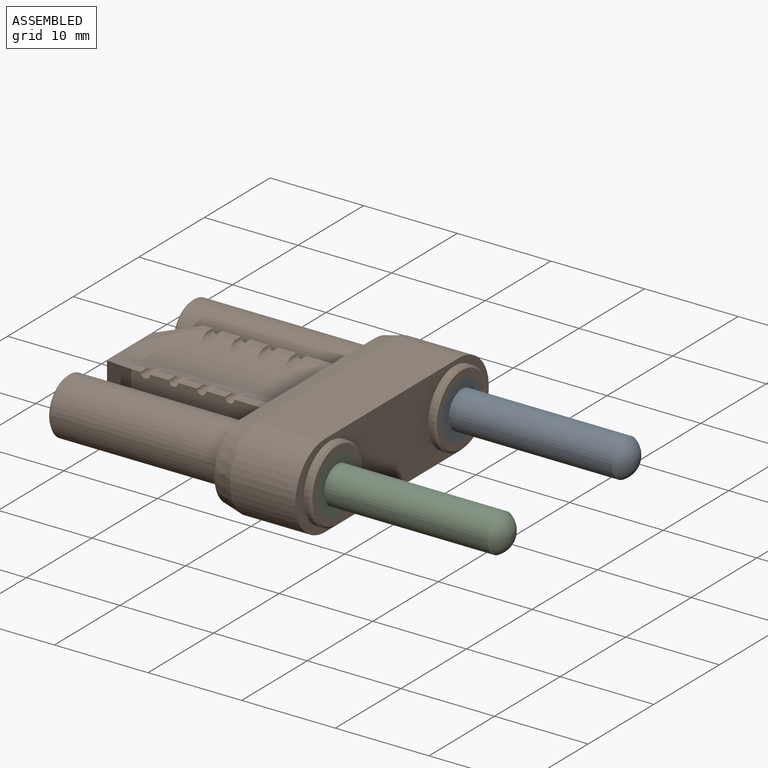
[diagram: assembled view]
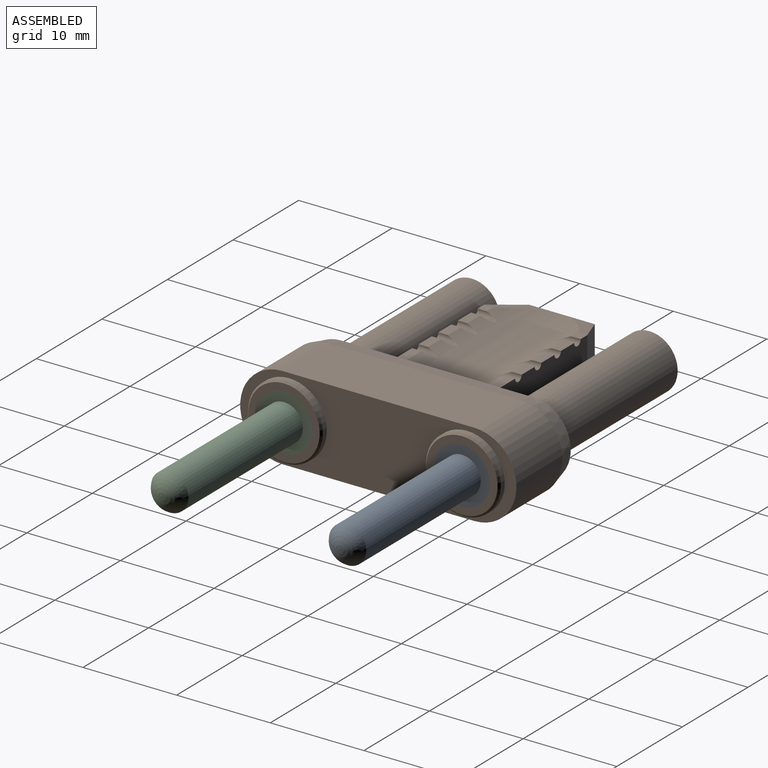
[diagram: assembled view, second angle]
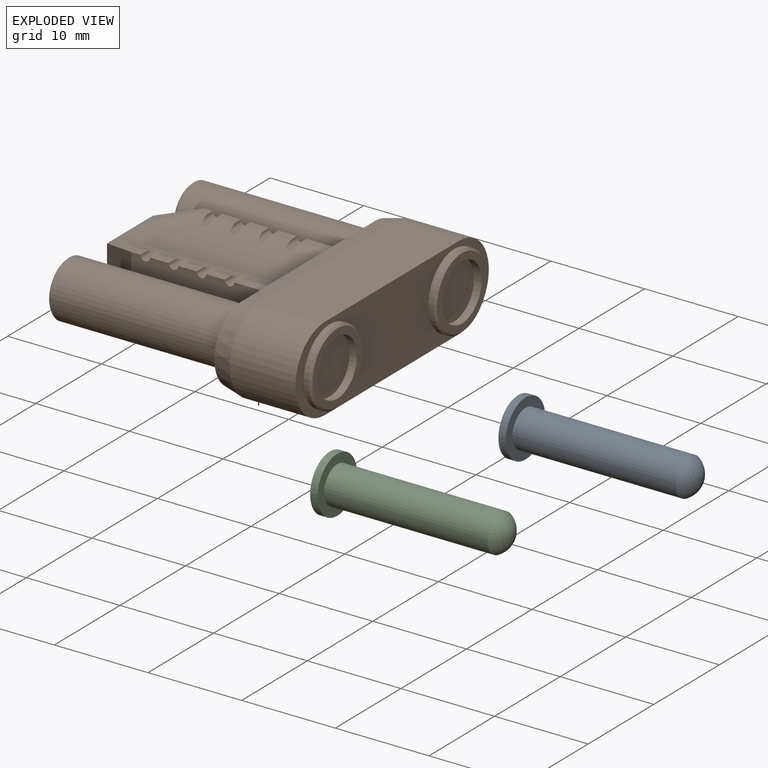
[diagram: exploded view]
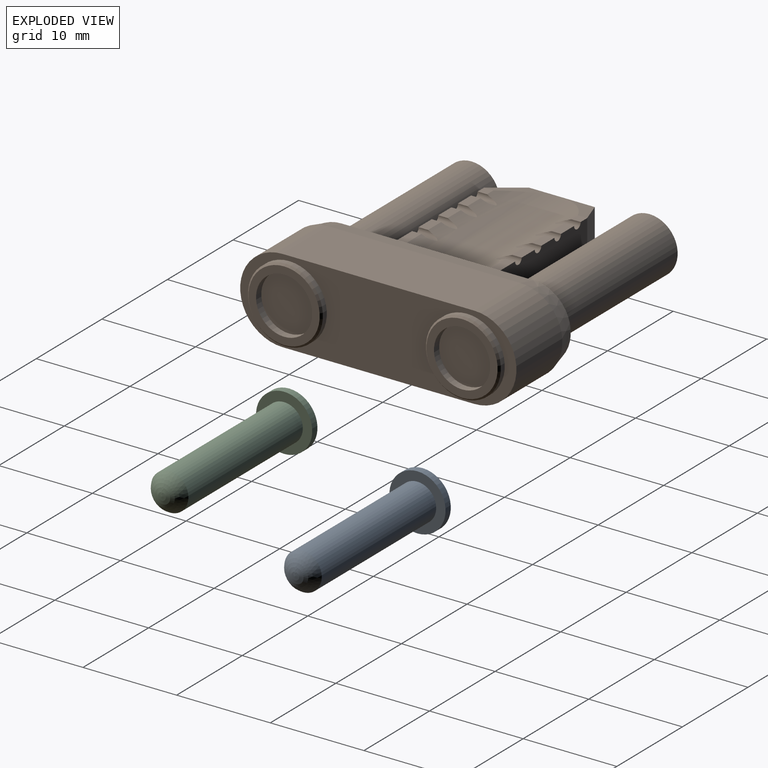
[diagram: exploded view, second angle]
ASSEMBLY  parts=3 mates=2
PART A: 5 faces, bbox 19.5x6x6 mm
  f0: cylinder r=3mm len=6mm, axis (-1,0,0), area 15.1mm2, adj f1,f2
  f1: plane 6x6mm, normal (1,0,0), area 15.7mm2, adj f0,f3
  f2: plane 6x6mm, normal (-1,0,0), area 28.3mm2, adj f0
  f3: cylinder r=2mm len=17.45mm, axis (-1,0,0), area 219.3mm2, adj f1,f4
  f4: sphere r=2.25mm, area 17.2mm2, adj f3
PART B: 77 faces, bbox 28.8x29.5x9 mm
  f0: plane 2x1mm, normal (0,0,-1), area 2mm2, adj f17,f18,f68,f70
  f1: plane 2x1mm, normal (0,0,-1), area 2mm2, adj f17,f18,f66,f68
  f2: plane 2x1mm, normal (0,0,-1), area 2mm2, adj f17,f18,f64,f66
  f3: plane 4x1mm, normal (0,0,-1), area 4mm2, adj f17,f18,f21,f64
  f4: plane 4x1mm, normal (0,0,1), area 4mm2, adj f17,f21,f54,f61
  f5: plane 2x1mm, normal (0,0,1), area 2mm2, adj f17,f54,f59,f61
  f6: plane 2x1mm, normal (0,0,1), area 2mm2, adj f17,f54,f57,f59
  f7: plane 2x1mm, normal (0,0,1), area 2mm2, adj f17,f54,f55,f57
  f8: plane 2x1mm, normal (0,0,-1), area 2mm2, adj f16,f18,f67,f69
  f9: plane 2x1mm, normal (0,0,-1), area 2mm2, adj f16,f18,f65,f67
  f10: plane 2x1mm, normal (0,0,-1), area 2mm2, adj f16,f18,f63,f65
  f11: plane 4x1mm, normal (0,0,-1), area 4mm2, adj f16,f18,f21,f63
  f12: plane 4x1mm, normal (0,0,1), area 4mm2, adj f16,f21,f54,f62
  f13: plane 2x1mm, normal (0,0,1), area 2mm2, adj f16,f54,f60,f62
  f14: plane 2x1mm, normal (0,0,1), area 2mm2, adj f16,f54,f58,f60
  f15: plane 2x1mm, normal (0,0,1), area 2mm2, adj f16,f54,f56,f58
  f16: plane 15x6mm, normal (0,1,0), area 86.9mm2, adj f8,f9,f10,f11,f12,f13,f14,f15
  f17: plane 15x6mm, normal (0,-1,0), area 86.9mm2, adj f0,f1,f2,f3,f4,f5,f6,f7
  f18: cylinder r=11mm len=18.86mm, axis (1,0,0), area 154.1mm2, adj f0,f1,f2,f3,f8,f9,f10,f11
  f19: plane 1x1mm, normal (0,0,-1), area 1mm2, adj f17,f18,f53,f70
  f20: plane 1x1mm, normal (0,0,1), area 1mm2, adj f17,f52,f54,f55
  f21: plane 28.5x8mm, normal (-1,0,0), area 103.4mm2, adj f3,f4,f11,f12,f16,f17,f18,f27
  f22: plane 20.5x7mm, normal (0,0,1), area 143.5mm2, adj f23,f25,f26,f29
  f23: cylinder r=4.5mm len=9mm, axis (-1,0,0), area 99mm2, adj f22,f24,f26,f27
  f24: plane 20.5x7mm, normal (0,0,-1), area 143.5mm2, adj f23,f25,f26,f28
  f25: cylinder r=4.5mm len=9mm, axis (-1,0,0), area 99mm2, adj f22,f24,f26,f30
  f26: plane 29.5x9mm, normal (1,0,0), area 147.6mm2, adj f22,f23,f24,f25,f32,f36
  f27: cone r=4.5mm half-angle=14deg, axis (1,0,0), area 27.5mm2, adj f21,f23,f28,f29
  f28: plane 20.5x2mm, normal (-0.24,0,-0.97), area 42.3mm2, adj f21,f24,f27,f30
  f29: plane 20.5x2mm, normal (-0.24,0,0.97), area 42.3mm2, adj f21,f22,f27,f30
  f30: cone r=4.5mm half-angle=14deg, axis (1,0,0), area 27.5mm2, adj f21,f25,f28,f29
  f31: cylinder r=3mm len=6mm, axis (-1,0,0), area 15.1mm2, adj f33,f34
  f32: cylinder r=4mm len=8mm, axis (-1,0,0), area 15.1mm2, adj f26,f71
  f33: plane 7.6x7.6mm, normal (1,0,0), area 17.1mm2, adj f31,f71
  f34: plane 6x6mm, normal (1,0,0), area 28.3mm2, adj f31
  f35: cylinder r=3mm len=6mm, axis (-1,0,0), area 15.1mm2, adj f37,f38
  f36: cylinder r=4mm len=8mm, axis (-1,0,0), area 15.1mm2, adj f26,f72
  f37: plane 7.6x7.6mm, normal (1,0,0), area 17.1mm2, adj f35,f72
  f38: plane 6x6mm, normal (1,0,0), area 28.3mm2, adj f35
  f39: cylinder r=2mm len=18.8mm, axis (1,0,0), area 236.2mm2, adj f42,f76
  f40: cylinder r=3mm len=18.8mm, axis (1,0,0), area 354.4mm2, adj f21,f75
  f41: plane 5.6x5.6mm, normal (-1,0,0), area 9.4mm2, adj f75,f76
  f42: plane 4x4mm, normal (-1,0,0), area 12.6mm2, adj f39
  f43: cylinder r=2mm len=18.8mm, axis (1,0,0), area 236.2mm2, adj f46,f74
  f44: cylinder r=3mm len=18.8mm, axis (1,0,0), area 354.4mm2, adj f21,f73
  f45: plane 5.6x5.6mm, normal (-1,0,0), area 9.4mm2, adj f73,f74
  f46: plane 4x4mm, normal (-1,0,0), area 12.6mm2, adj f43
  f47: plane 1x1mm, normal (0,0,-1), area 1mm2, adj f16,f18,f53,f69
  f48: plane 1x1mm, normal (0,0,1), area 1mm2, adj f16,f52,f54,f56
  f49: plane 7x4mm, normal (-1,0,0), area 28mm2, adj f50,f51,f52,f53
  f50: plane 6x4mm, normal (-0.45,-0.89,0), area 22.4mm2, adj f17,f49,f52,f53
  f51: plane 6x4mm, normal (-0.45,0.89,0), area 22.4mm2, adj f16,f49,f52,f53
  f52: plane 11x4mm, normal (-0.24,0,0.97), area 13.1mm2, adj f20,f48,f49,f50,f51,f54
  f53: plane 11x4mm, normal (-0.24,0,-0.97), area 13.1mm2, adj f18,f19,f47,f49,f50,f51
  f54: cylinder r=11mm len=18.86mm, axis (1,0,0), area 154.1mm2, adj f4,f5,f6,f7,f12,f13,f14,f15
  f55: cylinder r=0.5mm len=2.34mm, axis (0,1,0), area 2.9mm2, adj f7,f17,f20,f54
  f56: cylinder r=0.5mm len=2.34mm, axis (0,1,0), area 2.9mm2, adj f15,f16,f48,f54
  f57: cylinder r=0.5mm len=2.34mm, axis (0,1,0), area 2.9mm2, adj f6,f7,f17,f54
  f58: cylinder r=0.5mm len=2.34mm, axis (0,1,0), area 2.9mm2, adj f14,f15,f16,f54
  f59: cylinder r=0.5mm len=2.34mm, axis (0,1,0), area 2.9mm2, adj f5,f6,f17,f54
  f60: cylinder r=0.5mm len=2.34mm, axis (0,1,0), area 2.9mm2, adj f13,f14,f16,f54
  f61: cylinder r=0.5mm len=2.34mm, axis (0,1,0), area 2.9mm2, adj f4,f5,f17,f54
  f62: cylinder r=0.5mm len=2.34mm, axis (0,1,0), area 2.9mm2, adj f12,f13,f16,f54
  f63: cylinder r=0.5mm len=2.34mm, axis (0,1,0), area 2.9mm2, adj f10,f11,f16,f18
  f64: cylinder r=0.5mm len=2.34mm, axis (0,1,0), area 2.9mm2, adj f2,f3,f17,f18
  f65: cylinder r=0.5mm len=2.34mm, axis (0,1,0), area 2.9mm2, adj f9,f10,f16,f18
  f66: cylinder r=0.5mm len=2.34mm, axis (0,1,0), area 2.9mm2, adj f1,f2,f17,f18
  f67: cylinder r=0.5mm len=2.34mm, axis (0,1,0), area 2.9mm2, adj f8,f9,f16,f18
  f68: cylinder r=0.5mm len=2.34mm, axis (0,1,0), area 2.9mm2, adj f0,f1,f17,f18
  f69: cylinder r=0.5mm len=2.34mm, axis (0,1,0), area 2.9mm2, adj f8,f16,f18,f47
  f70: cylinder r=0.5mm len=2.34mm, axis (0,1,0), area 2.9mm2, adj f0,f17,f18,f19
  f71: cone r=3.8mm half-angle=45deg, axis (-1,0,0), area 6.9mm2, adj f32,f33
  f72: cone r=3.8mm half-angle=45deg, axis (-1,0,0), area 6.9mm2, adj f36,f37
  f73: cone r=2.8mm half-angle=45deg, axis (1,0,0), area 5.2mm2, adj f44,f45
  f74: cone r=2mm half-angle=45deg, axis (-1,0,0), area 3.7mm2, adj f43,f45
  f75: cone r=2.8mm half-angle=45deg, axis (1,0,0), area 5.2mm2, adj f40,f41
  f76: cone r=2mm half-angle=45deg, axis (-1,0,0), area 3.7mm2, adj f39,f41
PART C: same geometry as A
PLACE A t=(-2.96,-49.04,3.53)mm
PLACE B t=(-11.96,-18.54,3.53)mm
PLACE C t=(-2.96,-68.04,3.53)mm
MATE fastened C.f0 <-> B.f31  axis (-1,0,0) through (-2.96,-28.04,3.53)mm
MATE fastened A.f0 <-> B.f35  axis (-1,0,0) through (-2.96,-9.04,3.53)mm
